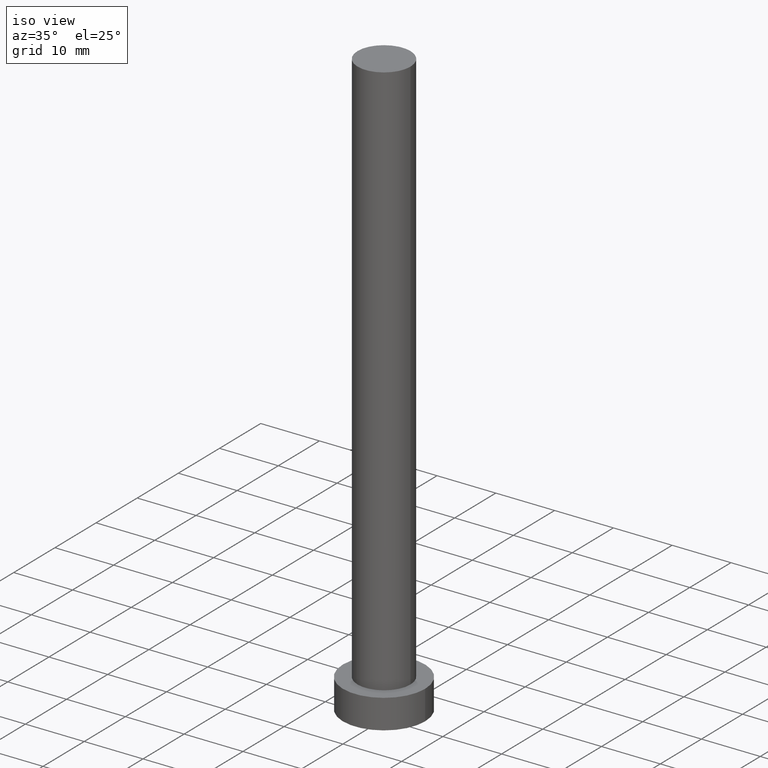
[diagram: clean part render]
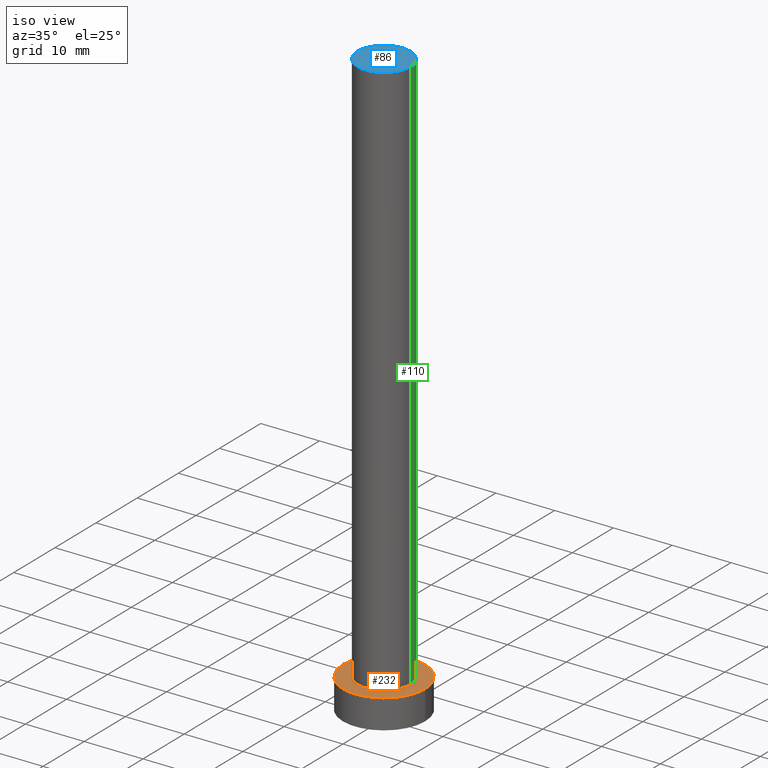
[diagram: same view with three faces highlighted in distinct colors, each labeled with its STEP entity id]
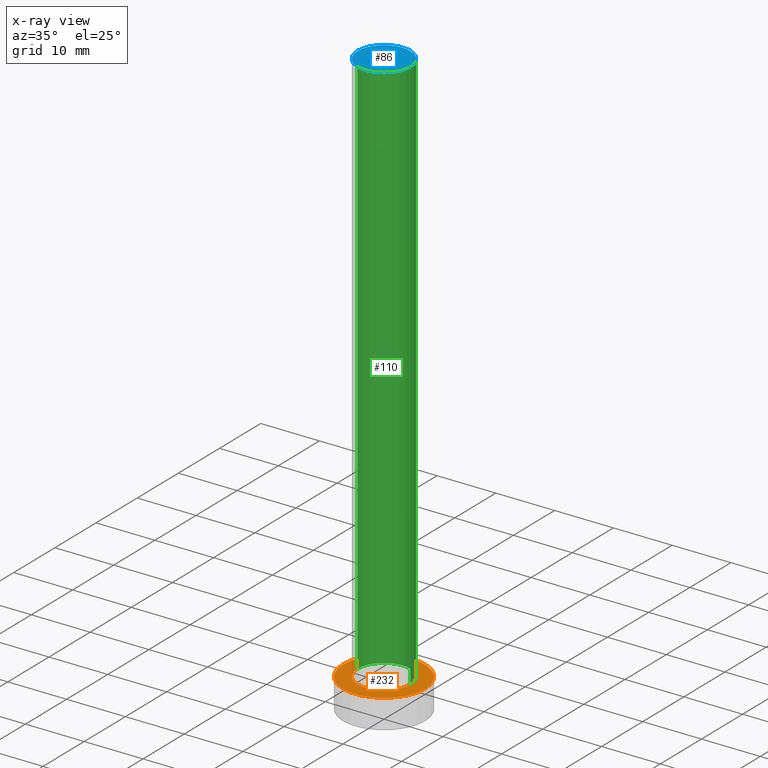
[diagram: x-ray of the same camera — body ghosted, the three highlighted faces saturated]
A machine part, iso view with three faces highlighted in distinct colors.
The next image is the same camera in x-ray (body ghosted, the three faces saturated) — at least one of them is partly hidden behind the body in this view.
Their STEP definitions:

[orange] entity #232 — the highlighted planar face has unit normal (0, 0, 1).
#1 = ORIENTED_EDGE ( 'NONE', *, *, #148, .F. ) ;
#6 = DIRECTION ( 'NONE',  ( 0.000000000000000000, 0.000000000000000000, 1.000000000000000000 ) ) ;
#7 = CARTESIAN_POINT ( 'NONE',  ( 7.000000000000000000, 8.572527594031473190E-16, 5.000000000000000000 ) ) ;
#11 = VERTEX_POINT ( 'NONE', #186 ) ;
#18 = ORIENTED_EDGE ( 'NONE', *, *, #144, .T. ) ;
#19 = CIRCLE ( 'NONE', #194, 4.500000000000000888 ) ;
#21 = ORIENTED_EDGE ( 'NONE', *, *, #106, .T. ) ;
#50 = DIRECTION ( 'NONE',  ( 0.000000000000000000, 0.000000000000000000, 1.000000000000000000 ) ) ;
#53 = CARTESIAN_POINT ( 'NONE',  ( -4.500000000000000888, 0.000000000000000000, 5.000000000000000000 ) ) ;
#63 = FACE_OUTER_BOUND ( 'NONE', #166, .T. ) ;
#66 = CARTESIAN_POINT ( 'NONE',  ( 0.000000000000000000, 0.000000000000000000, 5.000000000000000000 ) ) ;
#78 = CIRCLE ( 'NONE', #135, 7.000000000000000000 ) ;
#80 = PLANE ( 'NONE',  #105 ) ;
#81 = DIRECTION ( 'NONE',  ( 1.000000000000000000, 0.000000000000000000, 0.000000000000000000 ) ) ;
#83 = VERTEX_POINT ( 'NONE', #131 ) ;
#87 = DIRECTION ( 'NONE',  ( 1.000000000000000000, 0.000000000000000000, 0.000000000000000000 ) ) ;
#90 = VERTEX_POINT ( 'NONE', #7 ) ;
#95 = DIRECTION ( 'NONE',  ( 0.000000000000000000, 0.000000000000000000, 1.000000000000000000 ) ) ;
#103 = DIRECTION ( 'NONE',  ( 0.000000000000000000, 0.000000000000000000, 1.000000000000000000 ) ) ;
#105 = AXIS2_PLACEMENT_3D ( 'NONE', #66, #108, #142 ) ;
#106 = EDGE_CURVE ( 'NONE', #90, #11, #150, .T. ) ;
#108 = DIRECTION ( 'NONE',  ( 0.000000000000000000, 0.000000000000000000, 1.000000000000000000 ) ) ;
#124 = AXIS2_PLACEMENT_3D ( 'NONE', #215, #95, #227 ) ;
#128 = DIRECTION ( 'NONE',  ( 1.000000000000000000, 0.000000000000000000, 0.000000000000000000 ) ) ;
#131 = CARTESIAN_POINT ( 'NONE',  ( 4.500000000000000888, 5.510910596163089556E-16, 5.000000000000000000 ) ) ;
#135 = AXIS2_PLACEMENT_3D ( 'NONE', #143, #103, #81 ) ;
#142 = DIRECTION ( 'NONE',  ( 1.000000000000000000, 0.000000000000000000, -0.000000000000000000 ) ) ;
#143 = CARTESIAN_POINT ( 'NONE',  ( 0.000000000000000000, 0.000000000000000000, 5.000000000000000000 ) ) ;
#144 = EDGE_CURVE ( 'NONE', #11, #90, #78, .T. ) ;
#148 = EDGE_CURVE ( 'NONE', #252, #83, #19, .T. ) ;
#150 = CIRCLE ( 'NONE', #124, 7.000000000000000000 ) ;
#164 = AXIS2_PLACEMENT_3D ( 'NONE', #203, #6, #87 ) ;
#166 = EDGE_LOOP ( 'NONE', ( #18, #21 ) ) ;
#180 = FACE_BOUND ( 'NONE', #255, .T. ) ;
#186 = CARTESIAN_POINT ( 'NONE',  ( -7.000000000000000000, 0.000000000000000000, 5.000000000000000000 ) ) ;
#194 = AXIS2_PLACEMENT_3D ( 'NONE', #217, #50, #128 ) ;
#203 = CARTESIAN_POINT ( 'NONE',  ( 0.000000000000000000, 0.000000000000000000, 5.000000000000000000 ) ) ;
#215 = CARTESIAN_POINT ( 'NONE',  ( 0.000000000000000000, 0.000000000000000000, 5.000000000000000000 ) ) ;
#217 = CARTESIAN_POINT ( 'NONE',  ( 0.000000000000000000, 0.000000000000000000, 5.000000000000000000 ) ) ;
#226 = EDGE_CURVE ( 'NONE', #83, #252, #247, .T. ) ;
#227 = DIRECTION ( 'NONE',  ( 1.000000000000000000, 0.000000000000000000, 0.000000000000000000 ) ) ;
#232 = ADVANCED_FACE ( 'NONE', ( #180, #63 ), #80, .T. ) ;
#240 = ORIENTED_EDGE ( 'NONE', *, *, #226, .F. ) ;
#247 = CIRCLE ( 'NONE', #164, 4.500000000000000888 ) ;
#252 = VERTEX_POINT ( 'NONE', #53 ) ;
#255 = EDGE_LOOP ( 'NONE', ( #1, #240 ) ) ;

[blue] entity #86 — the highlighted planar face has unit normal (0, 0, 1).
#5 = FACE_OUTER_BOUND ( 'NONE', #189, .T. ) ;
#9 = CARTESIAN_POINT ( 'NONE',  ( 0.000000000000000000, 0.000000000000000000, 100.0000000000000000 ) ) ;
#26 = CARTESIAN_POINT ( 'NONE',  ( 4.500000000000000888, 5.510910596163089556E-16, 100.0000000000000000 ) ) ;
#29 = CARTESIAN_POINT ( 'NONE',  ( -4.500000000000000888, 0.000000000000000000, 100.0000000000000000 ) ) ;
#32 = PLANE ( 'NONE',  #114 ) ;
#39 = VERTEX_POINT ( 'NONE', #29 ) ;
#61 = EDGE_CURVE ( 'NONE', #64, #39, #161, .T. ) ;
#64 = VERTEX_POINT ( 'NONE', #26 ) ;
#67 = DIRECTION ( 'NONE',  ( 0.000000000000000000, 0.000000000000000000, 1.000000000000000000 ) ) ;
#68 = DIRECTION ( 'NONE',  ( 1.000000000000000000, 0.000000000000000000, -0.000000000000000000 ) ) ;
#73 = AXIS2_PLACEMENT_3D ( 'NONE', #206, #67, #126 ) ;
#85 = DIRECTION ( 'NONE',  ( 0.000000000000000000, 0.000000000000000000, 1.000000000000000000 ) ) ;
#86 = ADVANCED_FACE ( 'NONE', ( #5 ), #32, .T. ) ;
#113 = DIRECTION ( 'NONE',  ( 0.000000000000000000, 0.000000000000000000, 1.000000000000000000 ) ) ;
#114 = AXIS2_PLACEMENT_3D ( 'NONE', #170, #85, #68 ) ;
#122 = CIRCLE ( 'NONE', #73, 4.500000000000000888 ) ;
#126 = DIRECTION ( 'NONE',  ( 1.000000000000000000, 0.000000000000000000, 0.000000000000000000 ) ) ;
#127 = DIRECTION ( 'NONE',  ( 1.000000000000000000, 0.000000000000000000, 0.000000000000000000 ) ) ;
#134 = ORIENTED_EDGE ( 'NONE', *, *, #172, .T. ) ;
#161 = CIRCLE ( 'NONE', #208, 4.500000000000000888 ) ;
#170 = CARTESIAN_POINT ( 'NONE',  ( 0.000000000000000000, 0.000000000000000000, 100.0000000000000000 ) ) ;
#172 = EDGE_CURVE ( 'NONE', #39, #64, #122, .T. ) ;
#189 = EDGE_LOOP ( 'NONE', ( #134, #218 ) ) ;
#206 = CARTESIAN_POINT ( 'NONE',  ( 0.000000000000000000, 0.000000000000000000, 100.0000000000000000 ) ) ;
#208 = AXIS2_PLACEMENT_3D ( 'NONE', #9, #113, #127 ) ;
#218 = ORIENTED_EDGE ( 'NONE', *, *, #61, .T. ) ;

[green] entity #110 — the highlighted cylindrical surface (edge-blend (fillet) strip) has radius 4.5 mm, axis along (-0, -0, -1).
#6 = DIRECTION ( 'NONE',  ( 0.000000000000000000, 0.000000000000000000, 1.000000000000000000 ) ) ;
#9 = CARTESIAN_POINT ( 'NONE',  ( 0.000000000000000000, 0.000000000000000000, 100.0000000000000000 ) ) ;
#26 = CARTESIAN_POINT ( 'NONE',  ( 4.500000000000000888, 5.510910596163089556E-16, 100.0000000000000000 ) ) ;
#29 = CARTESIAN_POINT ( 'NONE',  ( -4.500000000000000888, 0.000000000000000000, 100.0000000000000000 ) ) ;
#34 = EDGE_CURVE ( 'NONE', #64, #83, #207, .T. ) ;
#39 = VERTEX_POINT ( 'NONE', #29 ) ;
#45 = CARTESIAN_POINT ( 'NONE',  ( 0.000000000000000000, 0.000000000000000000, 100.0000000000000000 ) ) ;
#51 = CARTESIAN_POINT ( 'NONE',  ( 4.500000000000000888, 5.510910596163089556E-16, 100.0000000000000000 ) ) ;
#53 = CARTESIAN_POINT ( 'NONE',  ( -4.500000000000000888, 0.000000000000000000, 5.000000000000000000 ) ) ;
#57 = FACE_OUTER_BOUND ( 'NONE', #210, .T. ) ;
#61 = EDGE_CURVE ( 'NONE', #64, #39, #161, .T. ) ;
#64 = VERTEX_POINT ( 'NONE', #26 ) ;
#83 = VERTEX_POINT ( 'NONE', #131 ) ;
#87 = DIRECTION ( 'NONE',  ( 1.000000000000000000, 0.000000000000000000, 0.000000000000000000 ) ) ;
#88 = ORIENTED_EDGE ( 'NONE', *, *, #226, .T. ) ;
#100 = VECTOR ( 'NONE', #233, 1000.000000000000000 ) ;
#102 = LINE ( 'NONE', #181, #100 ) ;
#104 = ORIENTED_EDGE ( 'NONE', *, *, #133, .F. ) ;
#110 = ADVANCED_FACE ( 'NONE', ( #57 ), #183, .T. ) ;
#113 = DIRECTION ( 'NONE',  ( 0.000000000000000000, 0.000000000000000000, 1.000000000000000000 ) ) ;
#115 = DIRECTION ( 'NONE',  ( -0.000000000000000000, -0.000000000000000000, -1.000000000000000000 ) ) ;
#125 = DIRECTION ( 'NONE',  ( -0.000000000000000000, -0.000000000000000000, -1.000000000000000000 ) ) ;
#127 = DIRECTION ( 'NONE',  ( 1.000000000000000000, 0.000000000000000000, 0.000000000000000000 ) ) ;
#129 = VECTOR ( 'NONE', #115, 1000.000000000000000 ) ;
#131 = CARTESIAN_POINT ( 'NONE',  ( 4.500000000000000888, 5.510910596163089556E-16, 5.000000000000000000 ) ) ;
#133 = EDGE_CURVE ( 'NONE', #39, #252, #102, .T. ) ;
#159 = DIRECTION ( 'NONE',  ( -1.000000000000000000, 0.000000000000000000, 0.000000000000000000 ) ) ;
#161 = CIRCLE ( 'NONE', #208, 4.500000000000000888 ) ;
#164 = AXIS2_PLACEMENT_3D ( 'NONE', #203, #6, #87 ) ;
#181 = CARTESIAN_POINT ( 'NONE',  ( -4.500000000000000888, 0.000000000000000000, 100.0000000000000000 ) ) ;
#183 = CYLINDRICAL_SURFACE ( 'NONE', #209, 4.500000000000000888 ) ;
#191 = ORIENTED_EDGE ( 'NONE', *, *, #61, .F. ) ;
#197 = ORIENTED_EDGE ( 'NONE', *, *, #34, .T. ) ;
#203 = CARTESIAN_POINT ( 'NONE',  ( 0.000000000000000000, 0.000000000000000000, 5.000000000000000000 ) ) ;
#207 = LINE ( 'NONE', #51, #129 ) ;
#208 = AXIS2_PLACEMENT_3D ( 'NONE', #9, #113, #127 ) ;
#209 = AXIS2_PLACEMENT_3D ( 'NONE', #45, #125, #159 ) ;
#210 = EDGE_LOOP ( 'NONE', ( #191, #197, #88, #104 ) ) ;
#226 = EDGE_CURVE ( 'NONE', #83, #252, #247, .T. ) ;
#233 = DIRECTION ( 'NONE',  ( -0.000000000000000000, -0.000000000000000000, -1.000000000000000000 ) ) ;
#247 = CIRCLE ( 'NONE', #164, 4.500000000000000888 ) ;
#252 = VERTEX_POINT ( 'NONE', #53 ) ;